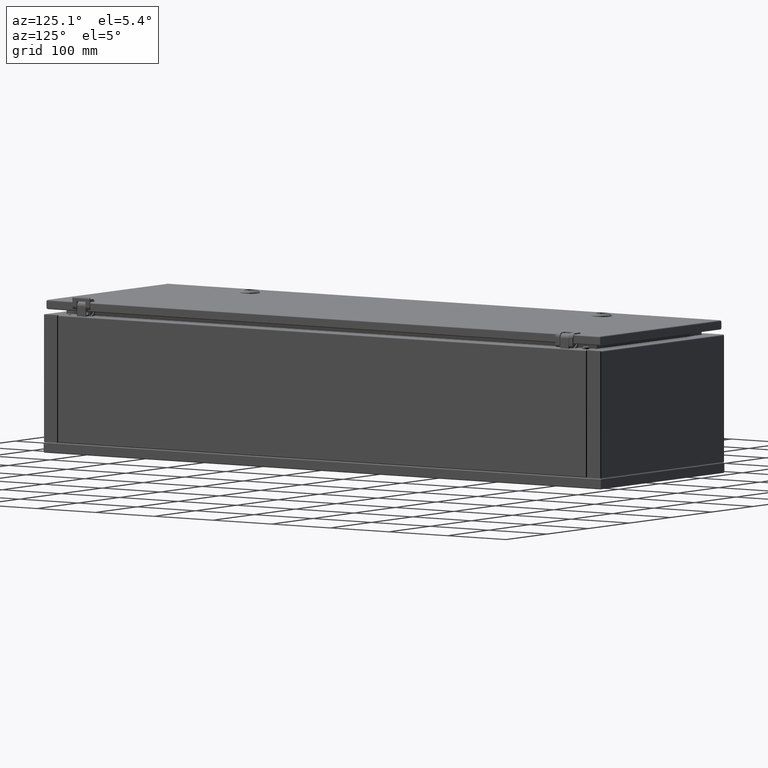
[diagram: clean part render]
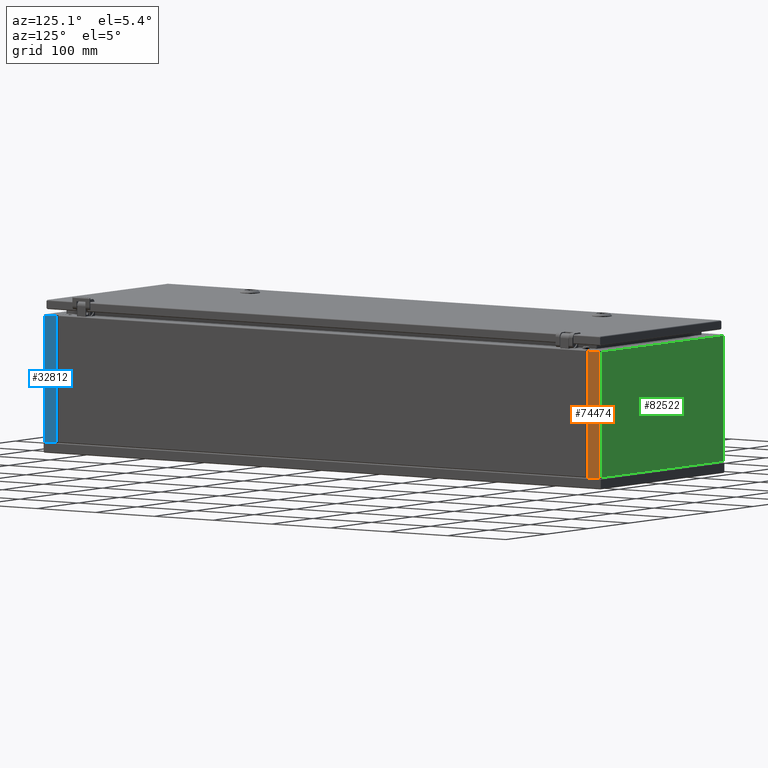
[diagram: same view with three faces highlighted in distinct colors, each labeled with its STEP entity id]
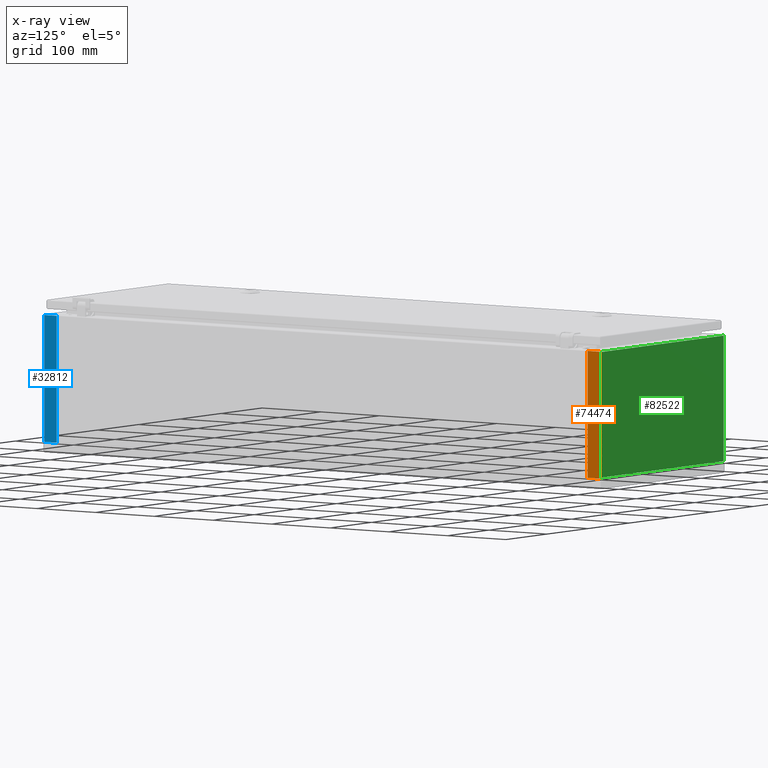
[diagram: x-ray of the same camera — body ghosted, the three highlighted faces saturated]
A machine part, auxiliary view with three faces highlighted in distinct colors.
The next image is the same camera in x-ray (body ghosted, the three faces saturated) — at least one of them is partly hidden behind the body in this view.
Their STEP definitions:

[orange] entity #74474 — the highlighted planar face has unit normal (-1, -0, 0).
#1111 = CARTESIAN_POINT ( 'NONE',  ( 150.0000000000000000, 473.5000000000000000, 191.8999999999955200 ) ) ;
#1592 = VERTEX_POINT ( 'NONE', #76333 ) ;
#7126 = AXIS2_PLACEMENT_3D ( 'NONE', #32868, #86616, #80412 ) ;
#7664 = CARTESIAN_POINT ( 'NONE',  ( 150.0000000000000000, 473.5000000000000000, 15.49999999999550000 ) ) ;
#13391 = VERTEX_POINT ( 'NONE', #14012 ) ;
#14012 = CARTESIAN_POINT ( 'NONE',  ( 150.0000000000000000, 473.5000000000000000, 13.99999999999544000 ) ) ;
#16660 = FACE_OUTER_BOUND ( 'NONE', #75826, .T. ) ;
#18789 = DIRECTION ( 'NONE',  ( 9.415632010757280800E-016, -1.000000000000000000, 1.646035625398189900E-014 ) ) ;
#20379 = VERTEX_POINT ( 'NONE', #1111 ) ;
#20899 = EDGE_CURVE ( 'NONE', #38256, #1592, #79654, .T. ) ;
#21508 = CARTESIAN_POINT ( 'NONE',  ( 150.0000000000000000, 452.6000000000000200, 191.8999999999960300 ) ) ;
#32013 = PLANE ( 'NONE',  #7126 ) ;
#32868 = CARTESIAN_POINT ( 'NONE',  ( 150.0000000000000000, 474.0000000000000000, 15.49999999999550000 ) ) ;
#36693 = LINE ( 'NONE', #55135, #40972 ) ;
#37880 = EDGE_CURVE ( 'NONE', #13391, #1592, #36693, .T. ) ;
#38105 = ORIENTED_EDGE ( 'NONE', *, *, #20899, .T. ) ;
#38256 = VERTEX_POINT ( 'NONE', #47323 ) ;
#40705 = DIRECTION ( 'NONE',  ( -5.233082485863329900E-016, -1.296574032302414000E-014, -1.000000000000000000 ) ) ;
#40972 = VECTOR ( 'NONE', #41750, 1000.000000000000000 ) ;
#41750 = DIRECTION ( 'NONE',  ( -3.001484642838905300E-015, -1.000000000000000000, 9.567928157466901000E-015 ) ) ;
#43540 = VECTOR ( 'NONE', #69096, 1000.000000000000000 ) ;
#47029 = LINE ( 'NONE', #7664, #77876 ) ;
#47323 = CARTESIAN_POINT ( 'NONE',  ( 150.0000000000000000, 452.6000000000000200, 191.8999999999960300 ) ) ;
#55135 = CARTESIAN_POINT ( 'NONE',  ( 150.0000000000000000, 473.5000000000000000, 13.99999999999544000 ) ) ;
#59038 = CARTESIAN_POINT ( 'NONE',  ( 150.0000000000000000, 473.5000000000000000, 191.8999999999955200 ) ) ;
#62306 = LINE ( 'NONE', #59038, #82444 ) ;
#68145 = ORIENTED_EDGE ( 'NONE', *, *, #70911, .F. ) ;
#69096 = DIRECTION ( 'NONE',  ( -5.233082485863329900E-016, -1.296574032302414000E-014, -1.000000000000000000 ) ) ;
#70911 = EDGE_CURVE ( 'NONE', #20379, #13391, #47029, .T. ) ;
#74248 = ORIENTED_EDGE ( 'NONE', *, *, #37880, .F. ) ;
#74474 = ADVANCED_FACE ( 'NONE', ( #16660 ), #32013, .F. ) ;
#75826 = EDGE_LOOP ( 'NONE', ( #38105, #74248, #68145, #78464 ) ) ;
#76333 = CARTESIAN_POINT ( 'NONE',  ( 150.0000000000000000, 452.6000000000000200, 13.99999999999562000 ) ) ;
#77876 = VECTOR ( 'NONE', #40705, 1000.000000000000000 ) ;
#78464 = ORIENTED_EDGE ( 'NONE', *, *, #87396, .T. ) ;
#79654 = LINE ( 'NONE', #21508, #43540 ) ;
#80412 = DIRECTION ( 'NONE',  ( 1.900759490769914700E-015, -1.000000000000000000, 1.296574032302414000E-014 ) ) ;
#82444 = VECTOR ( 'NONE', #18789, 1000.000000000000000 ) ;
#86616 = DIRECTION ( 'NONE',  ( -1.000000000000000000, -1.900759490769908000E-015, 5.233082485863580400E-016 ) ) ;
#87396 = EDGE_CURVE ( 'NONE', #20379, #38256, #62306, .T. ) ;

[blue] entity #32812 — the highlighted planar face has unit normal (-1, 0, -0).
#249 = DIRECTION ( 'NONE',  ( 4.758702732461060000E-015, 1.000000000000000000, 2.590653507537594600E-017 ) ) ;
#649 = DIRECTION ( 'NONE',  ( 4.761837324575670700E-015, 1.000000000000000000, 6.811850489649800500E-015 ) ) ;
#4578 = VECTOR ( 'NONE', #649, 1000.000000000000000 ) ;
#6302 = CARTESIAN_POINT ( 'NONE',  ( 150.0000000000000000, -473.5000000000000000, 191.8999999999999800 ) ) ;
#14414 = CARTESIAN_POINT ( 'NONE',  ( 150.0000000000000000, -452.6000000000000200, 14.00000000000000000 ) ) ;
#14739 = VERTEX_POINT ( 'NONE', #65554 ) ;
#15076 = CARTESIAN_POINT ( 'NONE',  ( 150.0000000000000000, -474.0000000000000000, 15.50000000000000000 ) ) ;
#15979 = DIRECTION ( 'NONE',  ( -4.310270819504185500E-015, -1.000000000000000000, -3.491481336412970400E-015 ) ) ;
#18237 = CARTESIAN_POINT ( 'NONE',  ( 150.0000000000000000, -473.5000000000000000, 191.5000000000000000 ) ) ;
#22856 = EDGE_CURVE ( 'NONE', #14739, #41902, #76261, .T. ) ;
#25009 = CARTESIAN_POINT ( 'NONE',  ( 150.0000000000000000, -452.6000000000000200, 191.8999999999999800 ) ) ;
#26985 = LINE ( 'NONE', #18237, #83354 ) ;
#30048 = VERTEX_POINT ( 'NONE', #63151 ) ;
#30327 = EDGE_LOOP ( 'NONE', ( #47168, #65161, #84648, #64999 ) ) ;
#32254 = FACE_OUTER_BOUND ( 'NONE', #30327, .T. ) ;
#32812 = ADVANCED_FACE ( 'NONE', ( #32254 ), #63872, .F. ) ;
#34812 = CARTESIAN_POINT ( 'NONE',  ( 150.0000000000000000, -452.6000000000000200, 14.00000000000000000 ) ) ;
#38348 = AXIS2_PLACEMENT_3D ( 'NONE', #15076, #70682, #15979 ) ;
#40118 = VECTOR ( 'NONE', #249, 1000.000000000000000 ) ;
#41554 = CARTESIAN_POINT ( 'NONE',  ( 150.0000000000000000, -473.5000000000000000, 14.00000000000000000 ) ) ;
#41902 = VERTEX_POINT ( 'NONE', #14414 ) ;
#44428 = EDGE_CURVE ( 'NONE', #14739, #30048, #26985, .T. ) ;
#45949 = DIRECTION ( 'NONE',  ( -4.023572721128125300E-025, -3.491481336412970400E-015, 1.000000000000000000 ) ) ;
#45988 = EDGE_CURVE ( 'NONE', #30048, #84429, #51419, .T. ) ;
#47168 = ORIENTED_EDGE ( 'NONE', *, *, #87512, .T. ) ;
#51419 = LINE ( 'NONE', #6302, #4578 ) ;
#63151 = CARTESIAN_POINT ( 'NONE',  ( 150.0000000000000000, -473.5000000000000000, 191.8999999999999800 ) ) ;
#63872 = PLANE ( 'NONE',  #38348 ) ;
#64443 = LINE ( 'NONE', #34812, #71849 ) ;
#64999 = ORIENTED_EDGE ( 'NONE', *, *, #22856, .T. ) ;
#65161 = ORIENTED_EDGE ( 'NONE', *, *, #45988, .F. ) ;
#65554 = CARTESIAN_POINT ( 'NONE',  ( 150.0000000000000000, -473.5000000000000000, 14.00000000000000000 ) ) ;
#70682 = DIRECTION ( 'NONE',  ( -1.000000000000000000, 4.310270819504185500E-015, -4.023422693701270200E-025 ) ) ;
#71849 = VECTOR ( 'NONE', #74995, 1000.000000000000000 ) ;
#74995 = DIRECTION ( 'NONE',  ( -4.023572721128125300E-025, -3.491481336412970400E-015, 1.000000000000000000 ) ) ;
#76261 = LINE ( 'NONE', #41554, #40118 ) ;
#83354 = VECTOR ( 'NONE', #45949, 1000.000000000000000 ) ;
#84429 = VERTEX_POINT ( 'NONE', #25009 ) ;
#84648 = ORIENTED_EDGE ( 'NONE', *, *, #44428, .F. ) ;
#87512 = EDGE_CURVE ( 'NONE', #41902, #84429, #64443, .T. ) ;

[green] entity #82522 — the highlighted planar face has unit normal (0, 1, -0).
#3759 = VECTOR ( 'NONE', #22649, 1000.000000000000000 ) ;
#4259 = EDGE_CURVE ( 'NONE', #52409, #61264, #40482, .T. ) ;
#5289 = CARTESIAN_POINT ( 'NONE',  ( -150.0000000000000000, 475.0000000000000000, 15.49999999999560000 ) ) ;
#9333 = EDGE_CURVE ( 'NONE', #60525, #61264, #29211, .T. ) ;
#10605 = EDGE_CURVE ( 'NONE', #60525, #58253, #64697, .T. ) ;
#10878 = PLANE ( 'NONE',  #76788 ) ;
#13947 = ORIENTED_EDGE ( 'NONE', *, *, #9333, .T. ) ;
#17704 = CARTESIAN_POINT ( 'NONE',  ( -150.0000000000000000, 475.0000000000000000, 15.49999999999560000 ) ) ;
#18337 = ORIENTED_EDGE ( 'NONE', *, *, #10605, .F. ) ;
#21193 = CARTESIAN_POINT ( 'NONE',  ( -148.4999999999988100, 475.0000000000000000, 191.4999999999955100 ) ) ;
#22649 = DIRECTION ( 'NONE',  ( -5.233082485863329900E-016, -1.296574032302414000E-014, -1.000000000000000000 ) ) ;
#24415 = EDGE_CURVE ( 'NONE', #52409, #58253, #69752, .T. ) ;
#29211 = LINE ( 'NONE', #29673, #40910 ) ;
#29673 = CARTESIAN_POINT ( 'NONE',  ( -148.5000000000000000, 475.0000000000000000, 15.49999999999560000 ) ) ;
#31403 = DIRECTION ( 'NONE',  ( 5.233082485863201700E-016, 1.000000000000000000, -1.296574032302414000E-014 ) ) ;
#35801 = ORIENTED_EDGE ( 'NONE', *, *, #24415, .T. ) ;
#38231 = DIRECTION ( 'NONE',  ( -1.000000000000000000, 5.233082485863269800E-016, 5.233082485863259900E-016 ) ) ;
#40482 = LINE ( 'NONE', #62200, #87213 ) ;
#40910 = VECTOR ( 'NONE', #63589, 1000.000000000000000 ) ;
#52409 = VERTEX_POINT ( 'NONE', #85445 ) ;
#52757 = CARTESIAN_POINT ( 'NONE',  ( 148.5000000000000000, 475.0000000000000000, 15.49999999999540100 ) ) ;
#56436 = ORIENTED_EDGE ( 'NONE', *, *, #4259, .F. ) ;
#58253 = VERTEX_POINT ( 'NONE', #52757 ) ;
#60525 = VERTEX_POINT ( 'NONE', #86220 ) ;
#60862 = EDGE_LOOP ( 'NONE', ( #56436, #35801, #18337, #13947 ) ) ;
#61264 = VERTEX_POINT ( 'NONE', #21193 ) ;
#62200 = CARTESIAN_POINT ( 'NONE',  ( -149.9999999999987800, 475.0000000000000000, 191.4999999999955100 ) ) ;
#62536 = CARTESIAN_POINT ( 'NONE',  ( 148.5000000000011900, 475.0000000000000000, 191.4999999999955100 ) ) ;
#63589 = DIRECTION ( 'NONE',  ( 5.233082485863329900E-016, 1.296574032302414000E-014, 1.000000000000000000 ) ) ;
#63685 = VECTOR ( 'NONE', #80726, 1000.000000000000000 ) ;
#64697 = LINE ( 'NONE', #5289, #63685 ) ;
#68128 = DIRECTION ( 'NONE',  ( -1.000000000000000000, 5.233082485863269800E-016, 5.233082485863259900E-016 ) ) ;
#69752 = LINE ( 'NONE', #62536, #3759 ) ;
#72821 = FACE_OUTER_BOUND ( 'NONE', #60862, .T. ) ;
#76788 = AXIS2_PLACEMENT_3D ( 'NONE', #17704, #31403, #38231 ) ;
#80726 = DIRECTION ( 'NONE',  ( 1.000000000000000000, -5.233082485863269800E-016, -5.233082485863259900E-016 ) ) ;
#82522 = ADVANCED_FACE ( 'NONE', ( #72821 ), #10878, .T. ) ;
#85445 = CARTESIAN_POINT ( 'NONE',  ( 148.5000000000011900, 475.0000000000000000, 191.4999999999955100 ) ) ;
#86220 = CARTESIAN_POINT ( 'NONE',  ( -148.5000000000000000, 475.0000000000000000, 15.49999999999560000 ) ) ;
#87213 = VECTOR ( 'NONE', #68128, 1000.000000000000000 ) ;